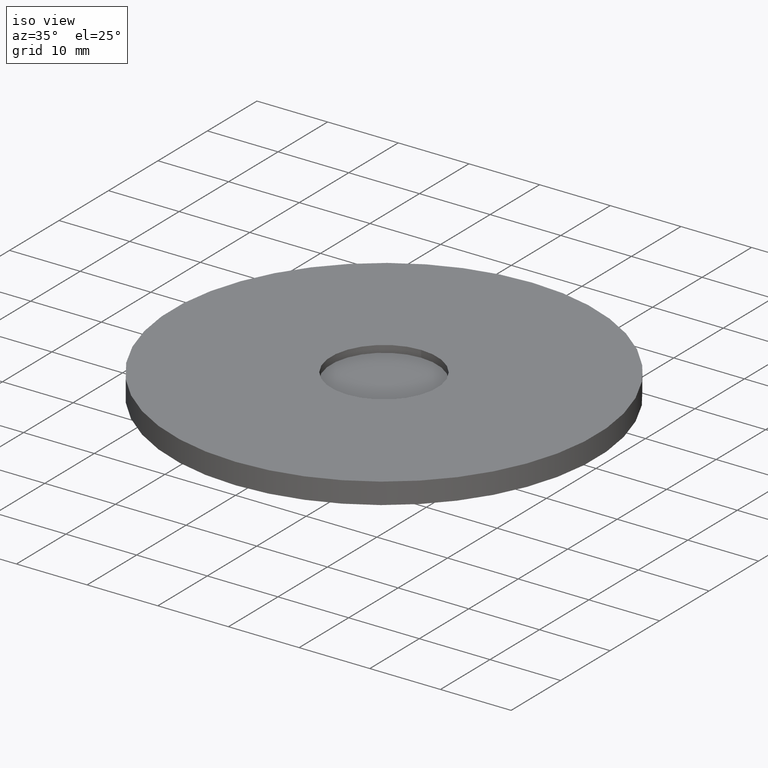
[diagram: clean part render]
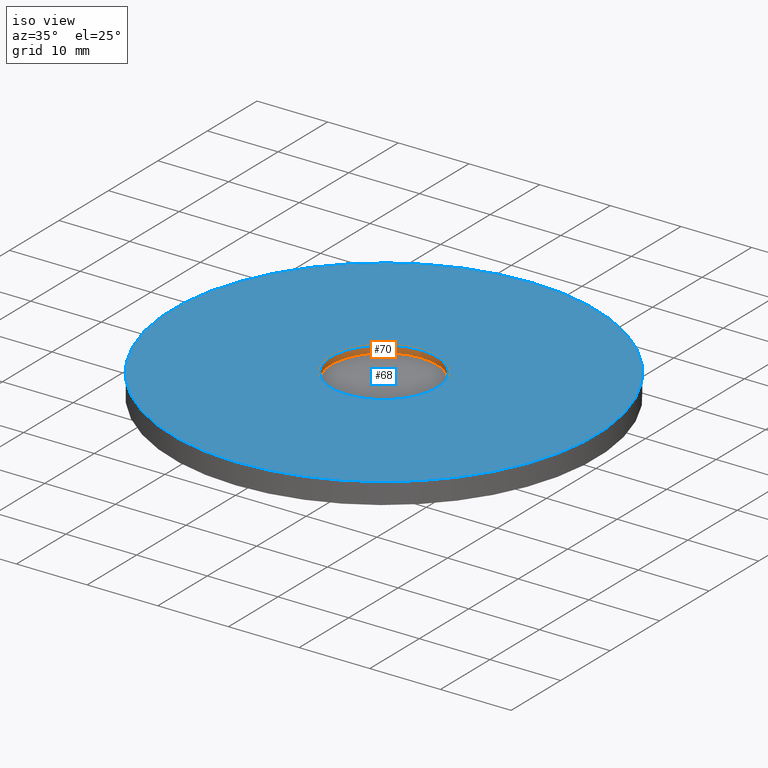
[diagram: same view with the hole feature highlighted: cylindrical wall and planar end face, labeled with their STEP entity ids]
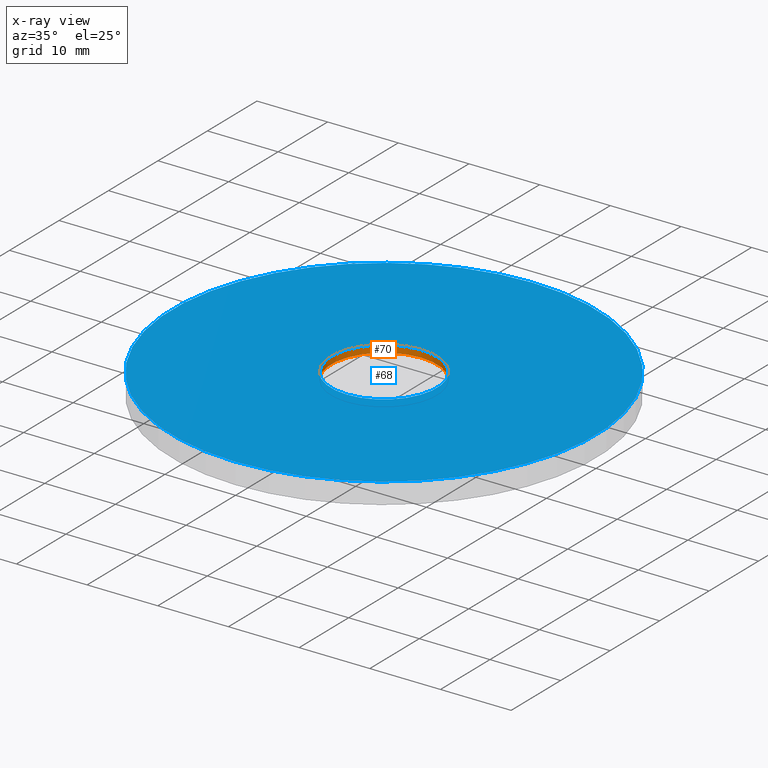
[diagram: x-ray of the same camera — body ghosted, the hole faces saturated]
A machine part, iso view. The highlighted faces form one hole feature of diameter 15 mm: the cylindrical wall (entity #70, orange) and its adjacent planar end face (entity #68, blue) — they share a circular edge in the B-rep.
The next image is the same camera in x-ray (body ghosted, the hole faces saturated) — the bore reads through the body.
Wall:
#21=FACE_OUTER_BOUND('',#27,.T.);
#27=EDGE_LOOP('',(#54,#55,#56,#57));
#30=LINE('',#140,#32);
#32=VECTOR('',#123,7.5);
#35=CIRCLE('',#99,7.5);
#36=CIRCLE('',#102,7.5);
#39=VERTEX_POINT('',#134);
#40=VERTEX_POINT('',#138);
#44=EDGE_CURVE('',#39,#39,#35,.T.);
#45=EDGE_CURVE('',#40,#40,#36,.T.);
#46=EDGE_CURVE('',#40,#39,#30,.T.);
#54=ORIENTED_EDGE('',*,*,#45,.F.);
#55=ORIENTED_EDGE('',*,*,#46,.T.);
#56=ORIENTED_EDGE('',*,*,#44,.T.);
#57=ORIENTED_EDGE('',*,*,#46,.F.);
#60=CYLINDRICAL_SURFACE('',#101,7.5);
#70=ADVANCED_FACE('',(#21),#60,.F.);
#99=AXIS2_PLACEMENT_3D('',#135,#115,#116);
#101=AXIS2_PLACEMENT_3D('',#137,#119,#120);
#102=AXIS2_PLACEMENT_3D('',#139,#121,#122);
#115=DIRECTION('center_axis',(0.,0.,1.));
#116=DIRECTION('ref_axis',(0.,-1.,0.));
#119=DIRECTION('center_axis',(0.,0.,1.));
#120=DIRECTION('ref_axis',(0.,-1.,0.));
#121=DIRECTION('center_axis',(0.,0.,1.));
#122=DIRECTION('ref_axis',(0.,-1.,0.));
#123=DIRECTION('',(0.,0.,1.));
#134=CARTESIAN_POINT('',(0.,7.5,3.));
#135=CARTESIAN_POINT('Origin',(0.,4.286264E-16,3.));
#137=CARTESIAN_POINT('Origin',(0.,4.286264E-16,7.));
#138=CARTESIAN_POINT('',(0.,7.5,2.));
#139=CARTESIAN_POINT('Origin',(0.,1.224647E-16,2.));
#140=CARTESIAN_POINT('',(-9.18485099360515E-16,7.5,7.));
End face:
#14=FACE_BOUND('',#25,.T.);
#15=PLANE('',#98);
#19=FACE_OUTER_BOUND('',#24,.T.);
#24=EDGE_LOOP('',(#51));
#25=EDGE_LOOP('',(#52));
#34=CIRCLE('',#97,30.);
#35=CIRCLE('',#99,7.5);
#38=VERTEX_POINT('',#130);
#39=VERTEX_POINT('',#134);
#43=EDGE_CURVE('',#38,#38,#34,.T.);
#44=EDGE_CURVE('',#39,#39,#35,.T.);
#51=ORIENTED_EDGE('',*,*,#43,.F.);
#52=ORIENTED_EDGE('',*,*,#44,.F.);
#68=ADVANCED_FACE('',(#19,#14),#15,.F.);
#97=AXIS2_PLACEMENT_3D('',#132,#111,#112);
#98=AXIS2_PLACEMENT_3D('',#133,#113,#114);
#99=AXIS2_PLACEMENT_3D('',#135,#115,#116);
#111=DIRECTION('center_axis',(0.,0.,-1.));
#112=DIRECTION('ref_axis',(0.,-1.,0.));
#113=DIRECTION('center_axis',(0.,0.,-1.));
#114=DIRECTION('ref_axis',(-1.,0.,0.));
#115=DIRECTION('center_axis',(0.,0.,1.));
#116=DIRECTION('ref_axis',(0.,-1.,0.));
#130=CARTESIAN_POINT('',(0.,30.,3.));
#132=CARTESIAN_POINT('Origin',(0.,4.286264E-16,3.));
#133=CARTESIAN_POINT('Origin',(36.0000342781768,36.0000342781768,3.));
#134=CARTESIAN_POINT('',(0.,7.5,3.));
#135=CARTESIAN_POINT('Origin',(0.,4.286264E-16,3.));